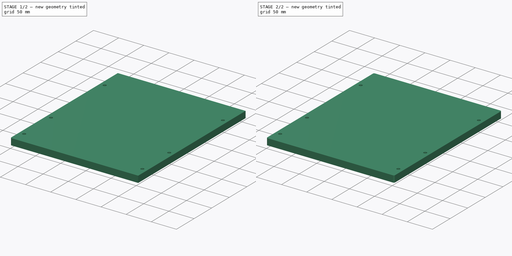
[diagram: build sequence overview — one tinted view per stage of 2, left to right]
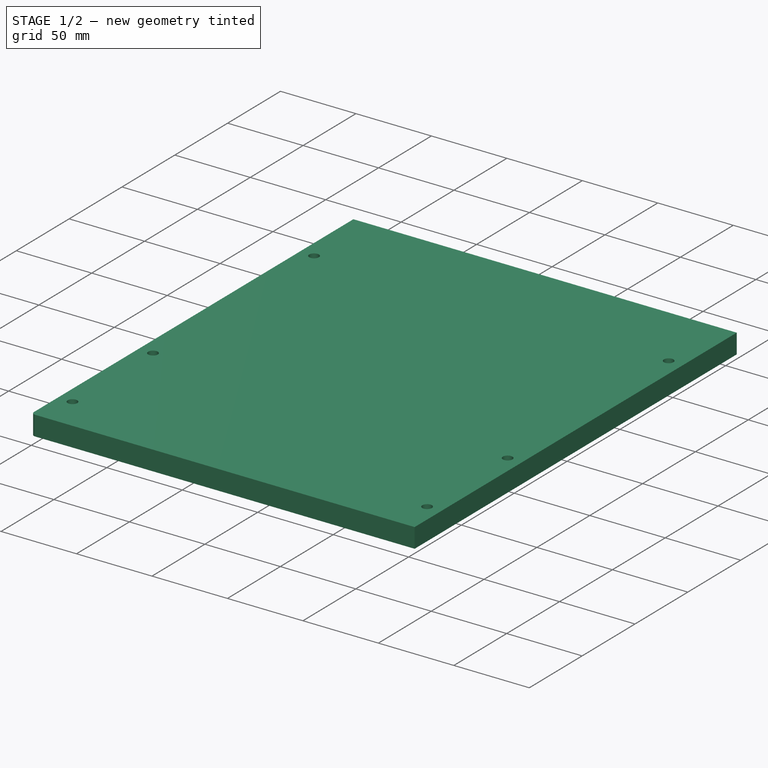
[diagram: stage 1 of 2 — iso view after this stage's code; geometry added in this stage tinted green]
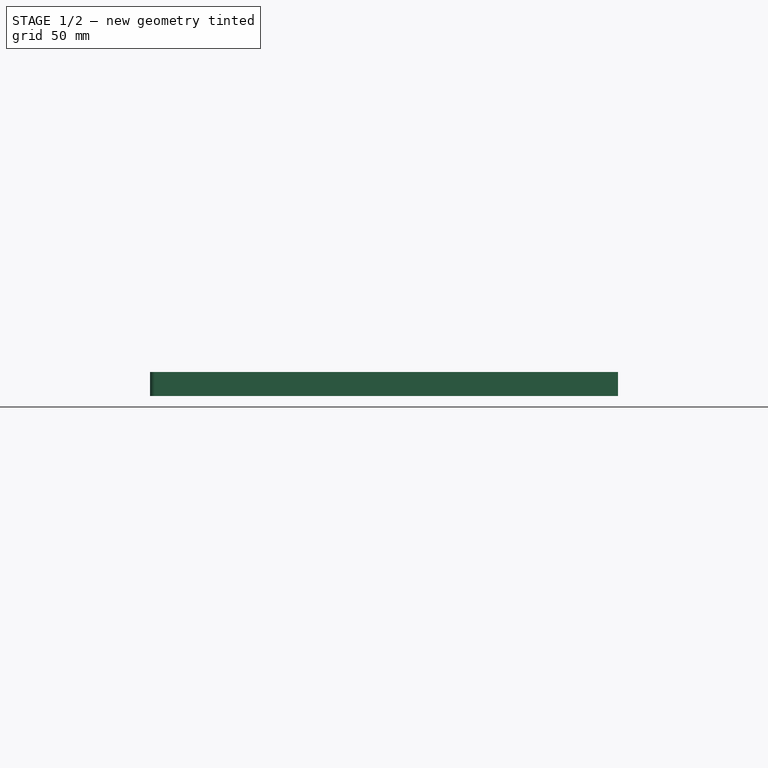
[diagram: stage 1 of 2 — front view after this stage's code; geometry added in this stage tinted green]
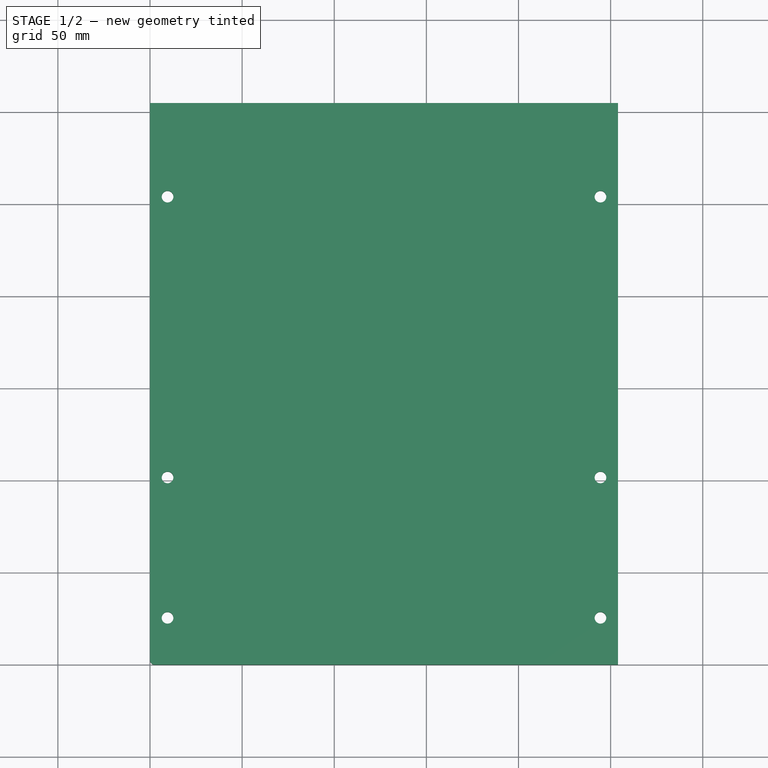
[diagram: stage 1 of 2 — top view after this stage's code; geometry added in this stage tinted green]
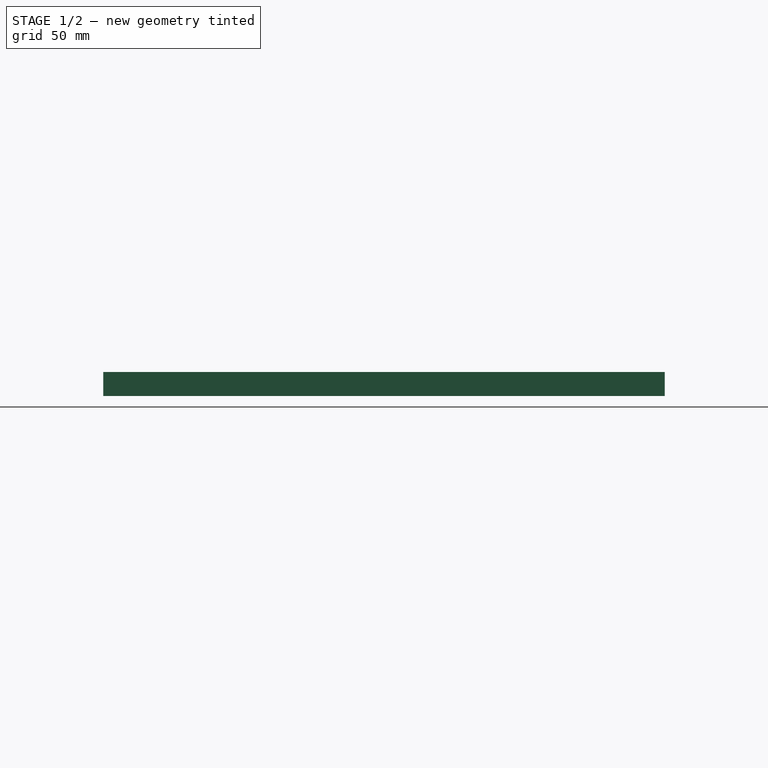
[diagram: stage 1 of 2 — right view after this stage's code; geometry added in this stage tinted green]
FCSTD DOCUMENT  (FreeCAD 0.16R6272 (Git))
Label: bottom
License: All rights reserved
LicenseURL: http://en.wikipedia.org/wiki/All_rights_reserved
objects: PartDesign::Fillet×3, Part::Part2DObjectPython×2, Sketcher::SketchObject×1, PartDesign::Pad×1
note: 8 computed .brp shape members not serialized (recipe doc carries the construction recipe); baked Part::Feature solids carry a one-line shape summary decoded from their .brp

FEATURE [Sketcher::SketchObject] Sketch
  sketch-geometry (10):
    g0: LineSegment StartX=0 StartY=0 StartZ=0 EndX=254 EndY=0 EndZ=0
    g1: LineSegment StartX=254 StartY=0 StartZ=0 EndX=254 EndY=304.8 EndZ=0
    g2: LineSegment StartX=254 StartY=304.8 StartZ=0 EndX=0 EndY=304.8 EndZ=0
    g3: LineSegment StartX=0 StartY=304.8 StartZ=0 EndX=0 EndY=0 EndZ=0
    g4: Circle CenterX=9.525 CenterY=25.4 CenterZ=0 NormalX=0 NormalY=0 NormalZ=1 Radius=3.175
    g5: Circle CenterX=9.525 CenterY=101.6 CenterZ=0 NormalX=0 NormalY=0 NormalZ=1 Radius=3.175
    g6: Circle CenterX=9.525 CenterY=254 CenterZ=0 NormalX=0 NormalY=0 NormalZ=1 Radius=3.175
    g7: Circle CenterX=244.475 CenterY=254 CenterZ=0 NormalX=0 NormalY=0 NormalZ=1 Radius=3.175
    g8: Circle CenterX=244.475 CenterY=101.6 CenterZ=0 NormalX=0 NormalY=0 NormalZ=1 Radius=3.175
    g9: Circle CenterX=244.475 CenterY=25.4 CenterZ=0 NormalX=0 NormalY=0 NormalZ=1 Radius=3.175
  constraints (25):
    c: Coincident(g0,g1)
    c: Coincident(g1,g2)
    c: Coincident(g2,g3)
    c: Coincident(g3,g0)
    c: Horizontal(g0)
    c: Horizontal(g2)
    c: Vertical(g1)
    c: Vertical(g3)
    c: Coincident(g0,g-1)
    c: DistanceX(g2) = -254
    c: DistanceY(g3) = -304.8
    c: Radius(g4) = 3.175
    c: DistanceX(g-1,g4) = 9.525
    c: DistanceY(g-1,g4) = 25.4
    c: Equal(g4,g5)
    c: Equal(g5,g6)
    c: DistanceY(g-1,g5) = 101.6
    c: DistanceY(g-1,g6) = 254
    c: Equal(g4,g9)
    c: Equal(g9,g8)
    c: Equal(g8,g7)
    c: DistanceY(g-1,g9) = 25.4
    c: DistanceY(g-1,g8) = 101.6
    c: DistanceY(g-1,g7) = 254
    c: DistanceX(g-1,g9) = 244.475
FEATURE [PartDesign::Pad] Pad
  Length = 13
  Length2 = 100
  Sketch = -> Sketch
  Type = 0
FEATURE [Part::Part2DObjectPython] Shape2DView  # Draft 2D object (typed FeaturePython)
  Base = -> Pad
  HiddenLines = false
  Projection = (0,0,1)
  ProjectionMode = 0
  SegmentLength = 0.05
  Tessellation = false
FEATURE [PartDesign::Fillet] Fillet
  Base = -> Pad [Edge1]
  Radius = 2.54
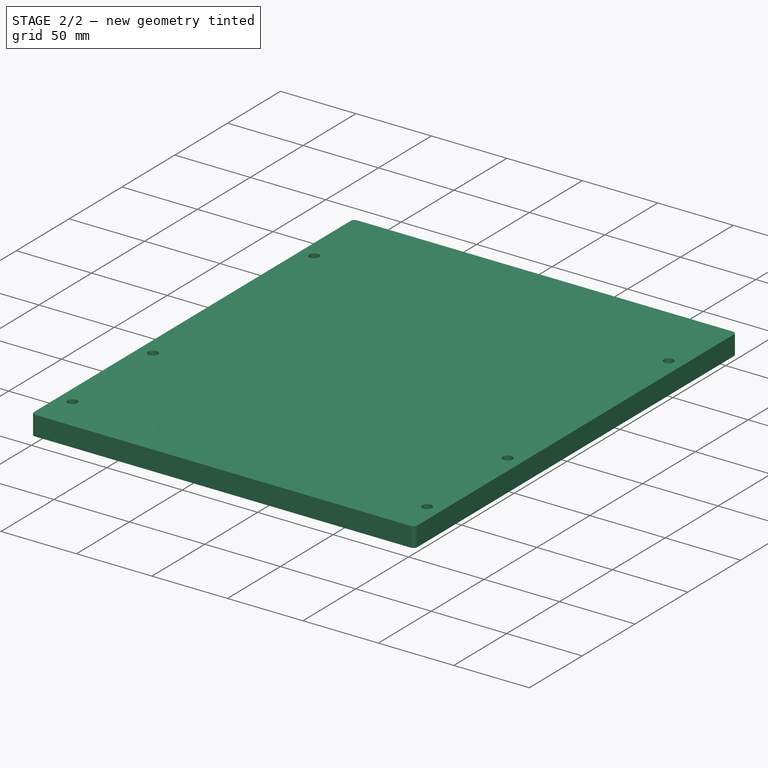
[diagram: stage 2 of 2 — iso view after this stage's code; geometry added in this stage tinted green]
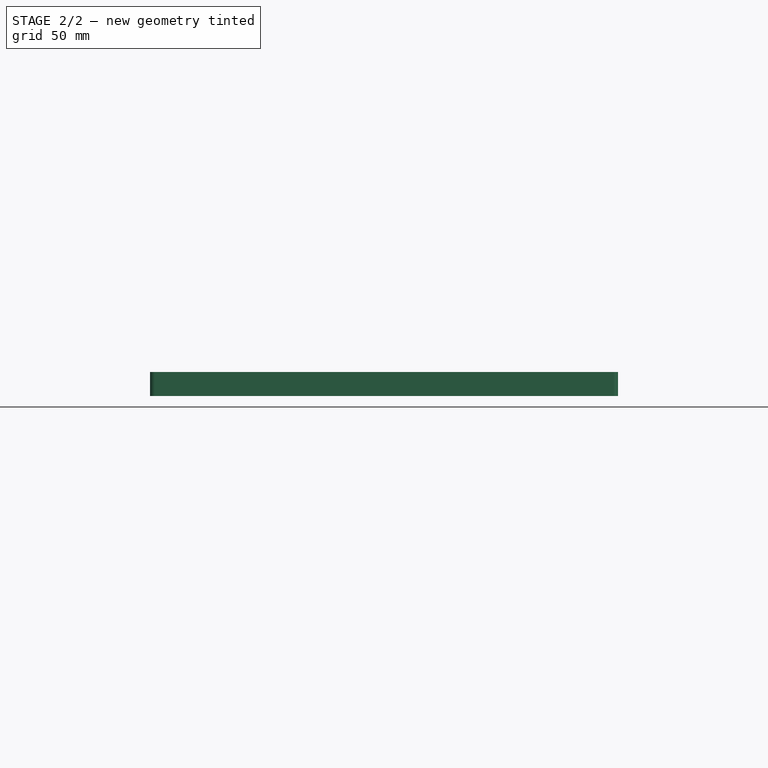
[diagram: stage 2 of 2 — front view after this stage's code; geometry added in this stage tinted green]
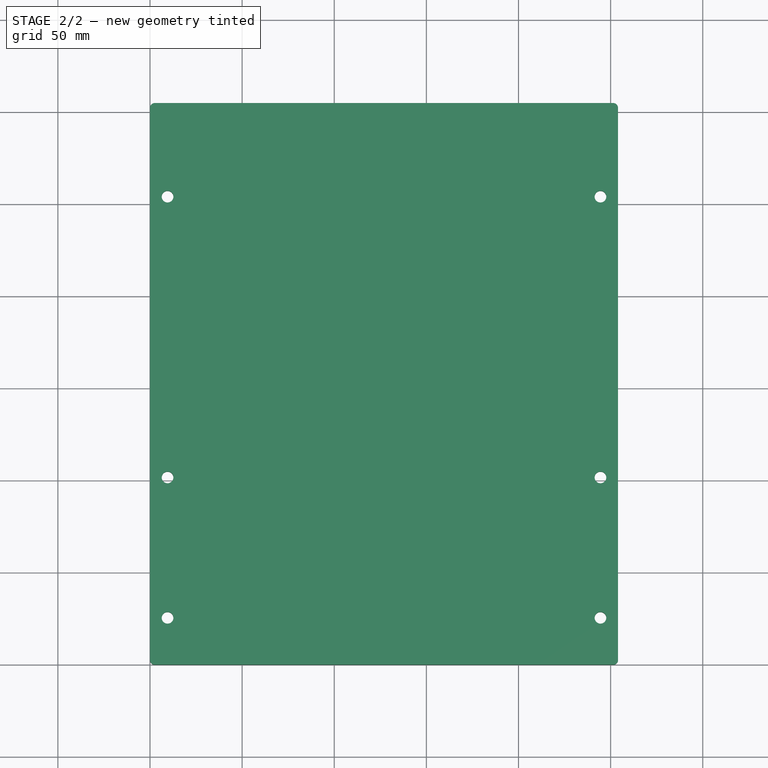
[diagram: stage 2 of 2 — top view after this stage's code; geometry added in this stage tinted green]
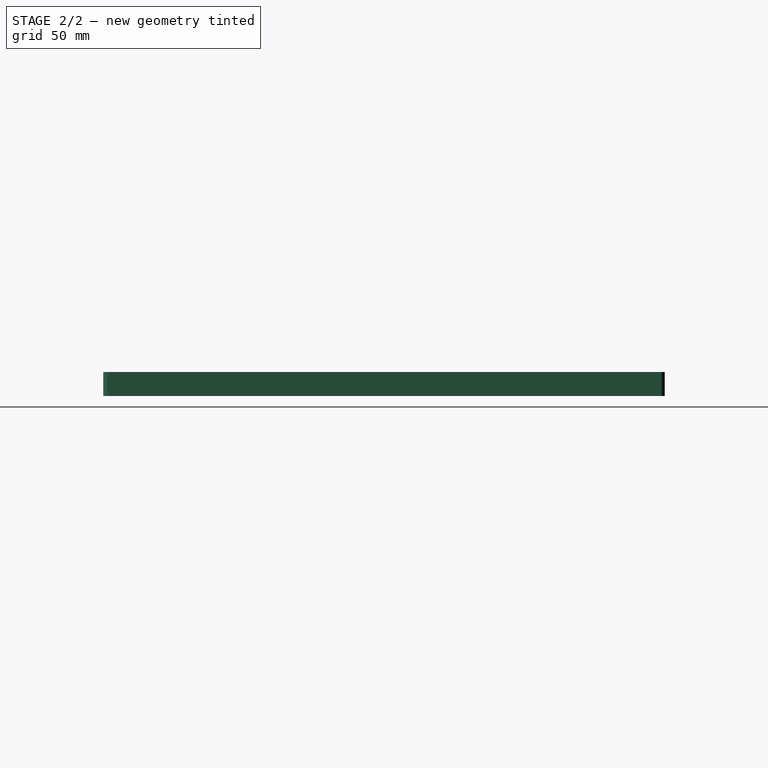
[diagram: stage 2 of 2 — right view after this stage's code; geometry added in this stage tinted green]
FEATURE [PartDesign::Fillet] Fillet001
  Base = -> Fillet [Edge3]
  Radius = 2.54
FEATURE [PartDesign::Fillet] Fillet002
  Base = -> Fillet001 [Edge30,Edge29]
  Radius = 2.54
FEATURE [Part::Part2DObjectPython] Shape2DView001  # Draft 2D object (typed FeaturePython)
  Base = -> Fillet002
  HiddenLines = false
  Projection = (0,0,1)
  ProjectionMode = 0
  SegmentLength = 0.05
  Tessellation = false
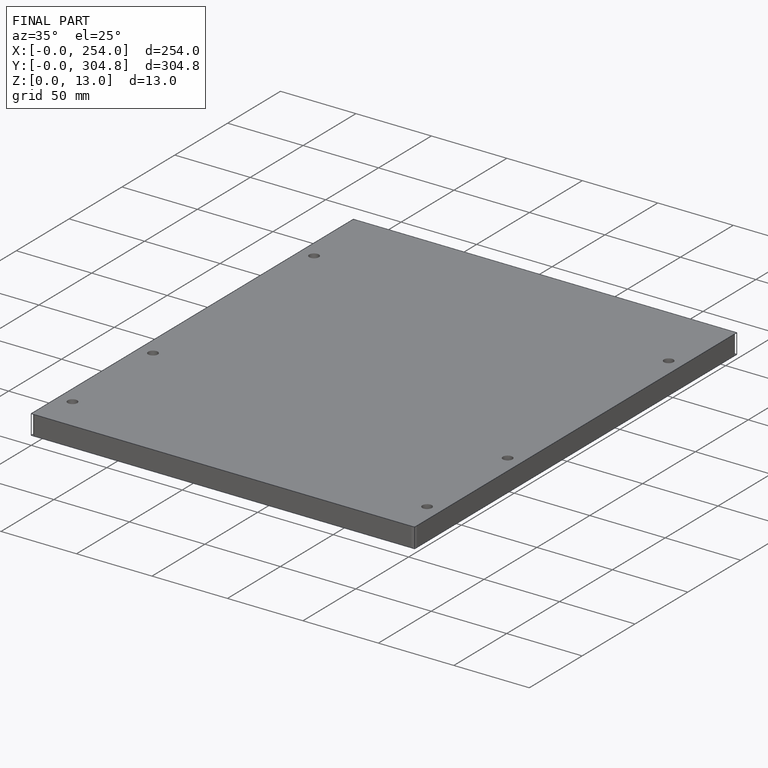
[diagram: finished part — iso view with bounding-box wireframe]
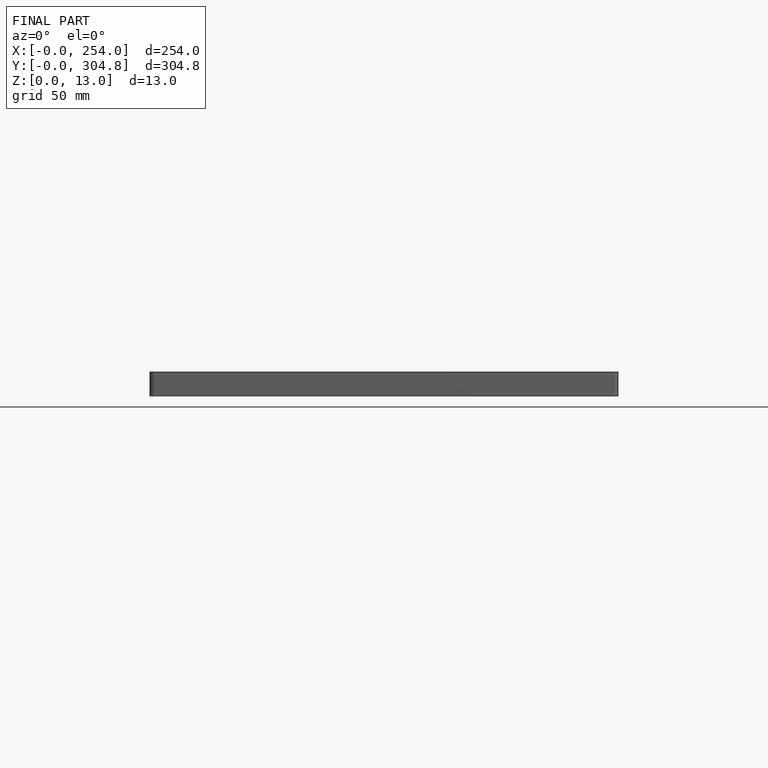
[diagram: finished part — front view with bounding-box wireframe]
